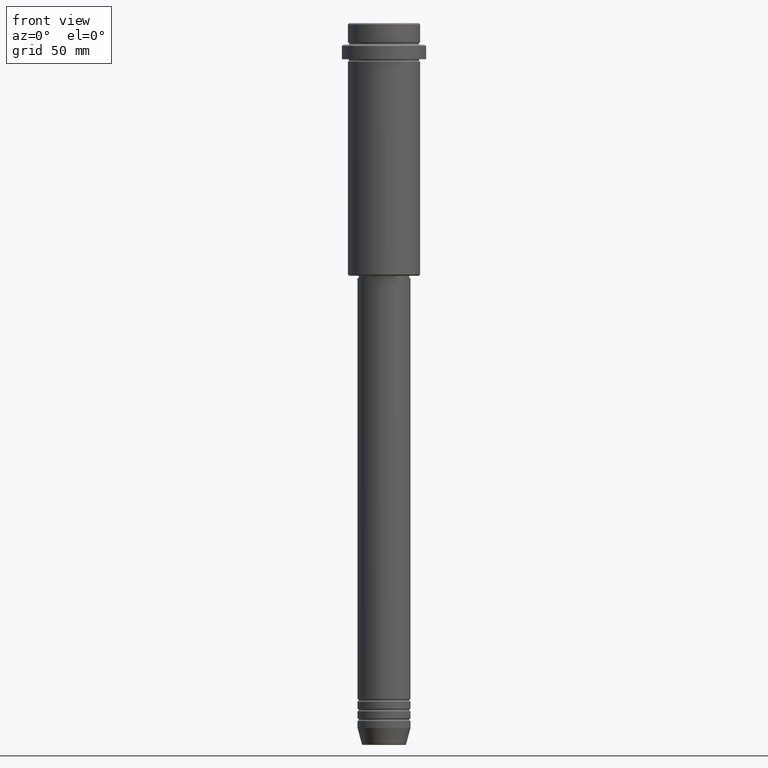
[diagram: clean part render]
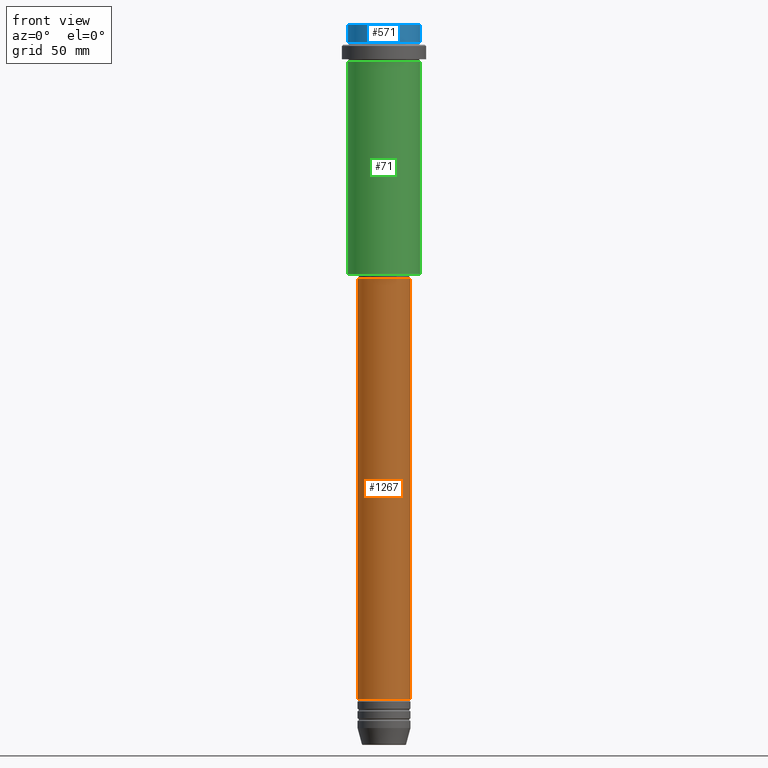
[diagram: same view with three faces highlighted in distinct colors, each labeled with its STEP entity id]
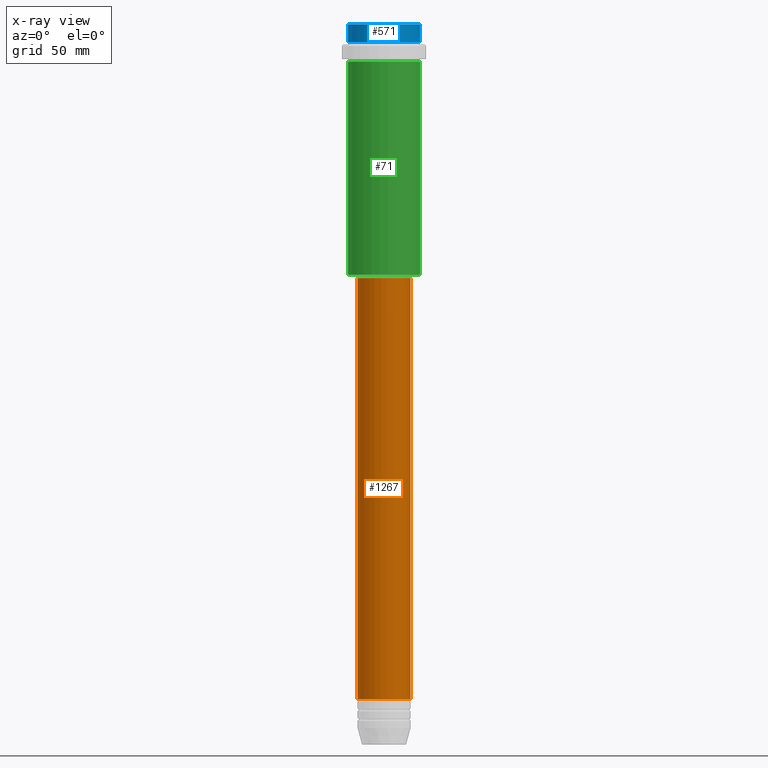
[diagram: x-ray of the same camera — body ghosted, the three highlighted faces saturated]
A machine part, front view with three faces highlighted in distinct colors.
The next image is the same camera in x-ray (body ghosted, the three faces saturated) — at least one of them is partly hidden behind the body in this view.
Their STEP definitions:

[orange] entity #1267 — the highlighted cylindrical surface (edge-blend (fillet) strip) has radius 11 mm, axis along (-0, -0, 1).
#20 = VERTEX_POINT ( 'NONE', #700 ) ;
#29 = FACE_OUTER_BOUND ( 'NONE', #505, .T. ) ;
#35 = CARTESIAN_POINT ( 'NONE',  ( 0.000000000000000000, 0.000000000000000000, 0.000000000000000000 ) ) ;
#38 = LINE ( 'NONE', #291, #1070 ) ;
#83 = LINE ( 'NONE', #529, #1102 ) ;
#106 = DIRECTION ( 'NONE',  ( -0.000000000000000000, -0.000000000000000000, 1.000000000000000000 ) ) ;
#110 = AXIS2_PLACEMENT_3D ( 'NONE', #35, #932, #1345 ) ;
#219 = CIRCLE ( 'NONE', #1018, 10.99999999999999822 ) ;
#291 = CARTESIAN_POINT ( 'NONE',  ( 11.00000000000000000, 0.000000000000000000, 0.000000000000000000 ) ) ;
#345 = CIRCLE ( 'NONE', #642, 11.00000000000000000 ) ;
#380 = DIRECTION ( 'NONE',  ( -0.000000000000000000, -0.000000000000000000, 1.000000000000000000 ) ) ;
#458 = VERTEX_POINT ( 'NONE', #744 ) ;
#505 = EDGE_LOOP ( 'NONE', ( #751, #735, #904, #831 ) ) ;
#519 = DIRECTION ( 'NONE',  ( -0.000000000000000000, -0.000000000000000000, 1.000000000000000000 ) ) ;
#527 = VERTEX_POINT ( 'NONE', #646 ) ;
#529 = CARTESIAN_POINT ( 'NONE',  ( -11.00000000000000000, 1.347111479062088405E-15, 0.000000000000000000 ) ) ;
#642 = AXIS2_PLACEMENT_3D ( 'NONE', #658, #106, #1134 ) ;
#646 = CARTESIAN_POINT ( 'NONE',  ( -11.00000000000000000, 1.347111479062088405E-15, -280.9999999999999432 ) ) ;
#658 = CARTESIAN_POINT ( 'NONE',  ( 0.000000000000000000, 0.000000000000000000, -280.9999999999999432 ) ) ;
#700 = CARTESIAN_POINT ( 'NONE',  ( 10.99999999999999822, 0.000000000000000000, -105.9999999999999289 ) ) ;
#729 = EDGE_CURVE ( 'NONE', #1010, #20, #38, .T. ) ;
#735 = ORIENTED_EDGE ( 'NONE', *, *, #1144, .T. ) ;
#744 = CARTESIAN_POINT ( 'NONE',  ( -10.99999999999999822, 1.347111479062088207E-15, -105.9999999999999289 ) ) ;
#751 = ORIENTED_EDGE ( 'NONE', *, *, #961, .F. ) ;
#818 = DIRECTION ( 'NONE',  ( 1.000000000000000000, 0.000000000000000000, 0.000000000000000000 ) ) ;
#830 = EDGE_CURVE ( 'NONE', #458, #20, #219, .T. ) ;
#831 = ORIENTED_EDGE ( 'NONE', *, *, #830, .F. ) ;
#869 = CARTESIAN_POINT ( 'NONE',  ( 11.00000000000000000, 0.000000000000000000, -280.9999999999999432 ) ) ;
#904 = ORIENTED_EDGE ( 'NONE', *, *, #729, .T. ) ;
#918 = CARTESIAN_POINT ( 'NONE',  ( 0.000000000000000000, 0.000000000000000000, -105.9999999999999289 ) ) ;
#932 = DIRECTION ( 'NONE',  ( -0.000000000000000000, -0.000000000000000000, 1.000000000000000000 ) ) ;
#961 = EDGE_CURVE ( 'NONE', #527, #458, #83, .T. ) ;
#1010 = VERTEX_POINT ( 'NONE', #869 ) ;
#1018 = AXIS2_PLACEMENT_3D ( 'NONE', #918, #380, #818 ) ;
#1019 = CYLINDRICAL_SURFACE ( 'NONE', #110, 11.00000000000000000 ) ;
#1070 = VECTOR ( 'NONE', #1362, 1000.000000000000000 ) ;
#1102 = VECTOR ( 'NONE', #519, 1000.000000000000000 ) ;
#1134 = DIRECTION ( 'NONE',  ( 1.000000000000000000, 0.000000000000000000, 0.000000000000000000 ) ) ;
#1144 = EDGE_CURVE ( 'NONE', #527, #1010, #345, .T. ) ;
#1267 = ADVANCED_FACE ( 'NONE', ( #29 ), #1019, .T. ) ;
#1345 = DIRECTION ( 'NONE',  ( 1.000000000000000000, 0.000000000000000000, 0.000000000000000000 ) ) ;
#1362 = DIRECTION ( 'NONE',  ( -0.000000000000000000, -0.000000000000000000, 1.000000000000000000 ) ) ;

[blue] entity #571 — the highlighted cylindrical surface (edge-blend (fillet) strip) has radius 15 mm, axis along (-0, -0, 1).
#3 = VECTOR ( 'NONE', #457, 1000.000000000000000 ) ;
#5 = CIRCLE ( 'NONE', #839, 15.00000000000000000 ) ;
#9 = CARTESIAN_POINT ( 'NONE',  ( 0.000000000000000000, 0.000000000000000000, -7.999999999999998224 ) ) ;
#17 = CARTESIAN_POINT ( 'NONE',  ( -15.00000000000000000, 1.836970198721029589E-15, 0.000000000000000000 ) ) ;
#47 = CARTESIAN_POINT ( 'NONE',  ( 0.000000000000000000, 0.000000000000000000, -0.5000000000000386358 ) ) ;
#85 = ORIENTED_EDGE ( 'NONE', *, *, #274, .F. ) ;
#145 = VERTEX_POINT ( 'NONE', #879 ) ;
#146 = VERTEX_POINT ( 'NONE', #994 ) ;
#151 = EDGE_CURVE ( 'NONE', #145, #492, #555, .T. ) ;
#192 = DIRECTION ( 'NONE',  ( -0.000000000000000000, -0.000000000000000000, 1.000000000000000000 ) ) ;
#274 = EDGE_CURVE ( 'NONE', #145, #146, #785, .T. ) ;
#308 = FACE_OUTER_BOUND ( 'NONE', #1142, .T. ) ;
#426 = DIRECTION ( 'NONE',  ( 1.000000000000000000, 0.000000000000000000, 0.000000000000000000 ) ) ;
#457 = DIRECTION ( 'NONE',  ( -0.000000000000000000, -0.000000000000000000, 1.000000000000000000 ) ) ;
#486 = DIRECTION ( 'NONE',  ( 0.000000000000000000, 0.000000000000000000, -1.000000000000000000 ) ) ;
#488 = ORIENTED_EDGE ( 'NONE', *, *, #151, .T. ) ;
#492 = VERTEX_POINT ( 'NONE', #627 ) ;
#555 = CIRCLE ( 'NONE', #651, 15.00000000000000000 ) ;
#571 = ADVANCED_FACE ( 'NONE', ( #308 ), #1065, .T. ) ;
#615 = ORIENTED_EDGE ( 'NONE', *, *, #1329, .T. ) ;
#627 = CARTESIAN_POINT ( 'NONE',  ( 15.00000000000000000, 0.000000000000000000, -7.999999999999998224 ) ) ;
#651 = AXIS2_PLACEMENT_3D ( 'NONE', #9, #1417, #692 ) ;
#692 = DIRECTION ( 'NONE',  ( 1.000000000000000000, 0.000000000000000000, 0.000000000000000000 ) ) ;
#715 = DIRECTION ( 'NONE',  ( 1.000000000000000000, 0.000000000000000000, 0.000000000000000000 ) ) ;
#779 = VERTEX_POINT ( 'NONE', #1123 ) ;
#785 = LINE ( 'NONE', #17, #3 ) ;
#792 = AXIS2_PLACEMENT_3D ( 'NONE', #1061, #960, #426 ) ;
#822 = EDGE_CURVE ( 'NONE', #779, #146, #5, .T. ) ;
#839 = AXIS2_PLACEMENT_3D ( 'NONE', #47, #486, #715 ) ;
#879 = CARTESIAN_POINT ( 'NONE',  ( -15.00000000000000000, 1.836970198721029589E-15, -7.999999999999998224 ) ) ;
#957 = VECTOR ( 'NONE', #192, 1000.000000000000000 ) ;
#958 = CARTESIAN_POINT ( 'NONE',  ( 15.00000000000000000, 0.000000000000000000, 0.000000000000000000 ) ) ;
#960 = DIRECTION ( 'NONE',  ( -0.000000000000000000, -0.000000000000000000, 1.000000000000000000 ) ) ;
#994 = CARTESIAN_POINT ( 'NONE',  ( -15.00000000000000000, 1.836970198721029589E-15, -0.5000000000000386358 ) ) ;
#1061 = CARTESIAN_POINT ( 'NONE',  ( 0.000000000000000000, 0.000000000000000000, 0.000000000000000000 ) ) ;
#1065 = CYLINDRICAL_SURFACE ( 'NONE', #792, 15.00000000000000000 ) ;
#1123 = CARTESIAN_POINT ( 'NONE',  ( 15.00000000000000000, 0.000000000000000000, -0.5000000000000386358 ) ) ;
#1142 = EDGE_LOOP ( 'NONE', ( #85, #488, #615, #1191 ) ) ;
#1191 = ORIENTED_EDGE ( 'NONE', *, *, #822, .T. ) ;
#1272 = LINE ( 'NONE', #958, #957 ) ;
#1329 = EDGE_CURVE ( 'NONE', #492, #779, #1272, .T. ) ;
#1417 = DIRECTION ( 'NONE',  ( -0.000000000000000000, -0.000000000000000000, 1.000000000000000000 ) ) ;

[green] entity #71 — the highlighted cylindrical surface (edge-blend (fillet) strip) has radius 15 mm, axis along (-0, -0, 1).
#64 = DIRECTION ( 'NONE',  ( -0.000000000000000000, -0.000000000000000000, 1.000000000000000000 ) ) ;
#71 = ADVANCED_FACE ( 'NONE', ( #1128 ), #169, .T. ) ;
#108 = LINE ( 'NONE', #892, #381 ) ;
#140 = DIRECTION ( 'NONE',  ( -0.000000000000000000, -0.000000000000000000, 1.000000000000000000 ) ) ;
#148 = CIRCLE ( 'NONE', #175, 15.00000000000000178 ) ;
#169 = CYLINDRICAL_SURFACE ( 'NONE', #489, 15.00000000000000000 ) ;
#175 = AXIS2_PLACEMENT_3D ( 'NONE', #1341, #140, #1235 ) ;
#176 = CARTESIAN_POINT ( 'NONE',  ( -15.00000000000000000, 1.836970198721029589E-15, -104.4999999999999289 ) ) ;
#249 = ORIENTED_EDGE ( 'NONE', *, *, #737, .F. ) ;
#370 = VERTEX_POINT ( 'NONE', #395 ) ;
#381 = VECTOR ( 'NONE', #1416, 1000.000000000000000 ) ;
#393 = VERTEX_POINT ( 'NONE', #176 ) ;
#395 = CARTESIAN_POINT ( 'NONE',  ( 15.00000000000000178, 0.000000000000000000, -16.00000000000000000 ) ) ;
#396 = EDGE_CURVE ( 'NONE', #548, #370, #1349, .T. ) ;
#427 = EDGE_CURVE ( 'NONE', #393, #548, #512, .T. ) ;
#466 = AXIS2_PLACEMENT_3D ( 'NONE', #619, #506, #1342 ) ;
#489 = AXIS2_PLACEMENT_3D ( 'NONE', #607, #1054, #649 ) ;
#506 = DIRECTION ( 'NONE',  ( -0.000000000000000000, -0.000000000000000000, 1.000000000000000000 ) ) ;
#512 = CIRCLE ( 'NONE', #466, 15.00000000000000000 ) ;
#522 = CARTESIAN_POINT ( 'NONE',  ( -15.00000000000000355, 1.836970198721029983E-15, -16.00000000000000000 ) ) ;
#548 = VERTEX_POINT ( 'NONE', #1160 ) ;
#607 = CARTESIAN_POINT ( 'NONE',  ( 0.000000000000000000, 0.000000000000000000, 0.000000000000000000 ) ) ;
#619 = CARTESIAN_POINT ( 'NONE',  ( 0.000000000000000000, 0.000000000000000000, -104.4999999999999289 ) ) ;
#649 = DIRECTION ( 'NONE',  ( 1.000000000000000000, 0.000000000000000000, 0.000000000000000000 ) ) ;
#686 = EDGE_CURVE ( 'NONE', #393, #1354, #108, .T. ) ;
#737 = EDGE_CURVE ( 'NONE', #1354, #370, #148, .T. ) ;
#892 = CARTESIAN_POINT ( 'NONE',  ( -15.00000000000000000, 1.836970198721029589E-15, 0.000000000000000000 ) ) ;
#977 = ORIENTED_EDGE ( 'NONE', *, *, #686, .F. ) ;
#1054 = DIRECTION ( 'NONE',  ( -0.000000000000000000, -0.000000000000000000, 1.000000000000000000 ) ) ;
#1092 = ORIENTED_EDGE ( 'NONE', *, *, #427, .T. ) ;
#1128 = FACE_OUTER_BOUND ( 'NONE', #1337, .T. ) ;
#1160 = CARTESIAN_POINT ( 'NONE',  ( 15.00000000000000000, 0.000000000000000000, -104.4999999999999289 ) ) ;
#1212 = ORIENTED_EDGE ( 'NONE', *, *, #396, .T. ) ;
#1235 = DIRECTION ( 'NONE',  ( 1.000000000000000000, 0.000000000000000000, 0.000000000000000000 ) ) ;
#1239 = VECTOR ( 'NONE', #64, 1000.000000000000000 ) ;
#1337 = EDGE_LOOP ( 'NONE', ( #977, #1092, #1212, #249 ) ) ;
#1341 = CARTESIAN_POINT ( 'NONE',  ( 0.000000000000000000, 0.000000000000000000, -16.00000000000000000 ) ) ;
#1342 = DIRECTION ( 'NONE',  ( -1.000000000000000000, 0.000000000000000000, 0.000000000000000000 ) ) ;
#1349 = LINE ( 'NONE', #1372, #1239 ) ;
#1354 = VERTEX_POINT ( 'NONE', #522 ) ;
#1372 = CARTESIAN_POINT ( 'NONE',  ( 15.00000000000000000, 0.000000000000000000, 0.000000000000000000 ) ) ;
#1416 = DIRECTION ( 'NONE',  ( -0.000000000000000000, -0.000000000000000000, 1.000000000000000000 ) ) ;